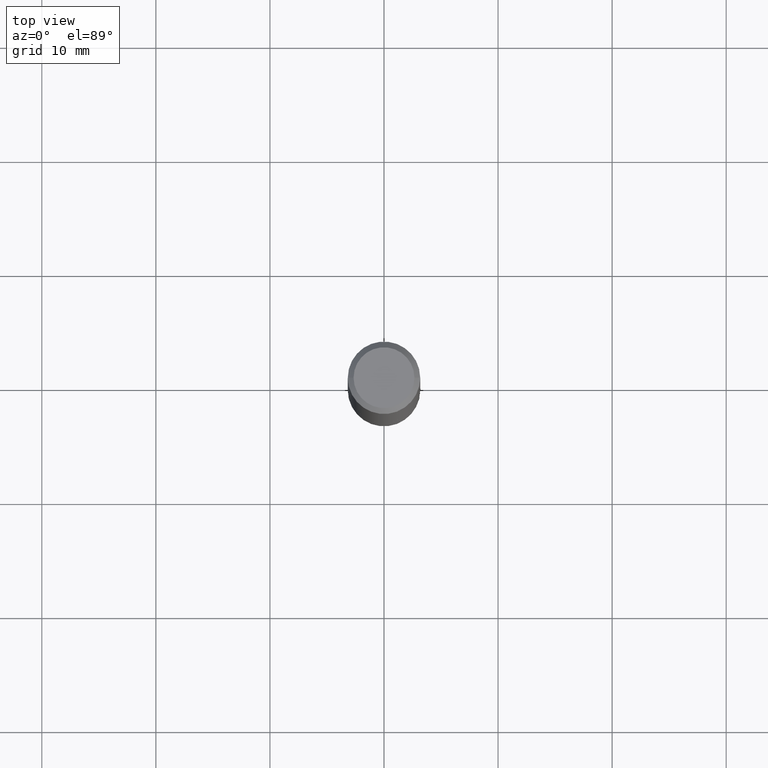
[diagram: clean part render]
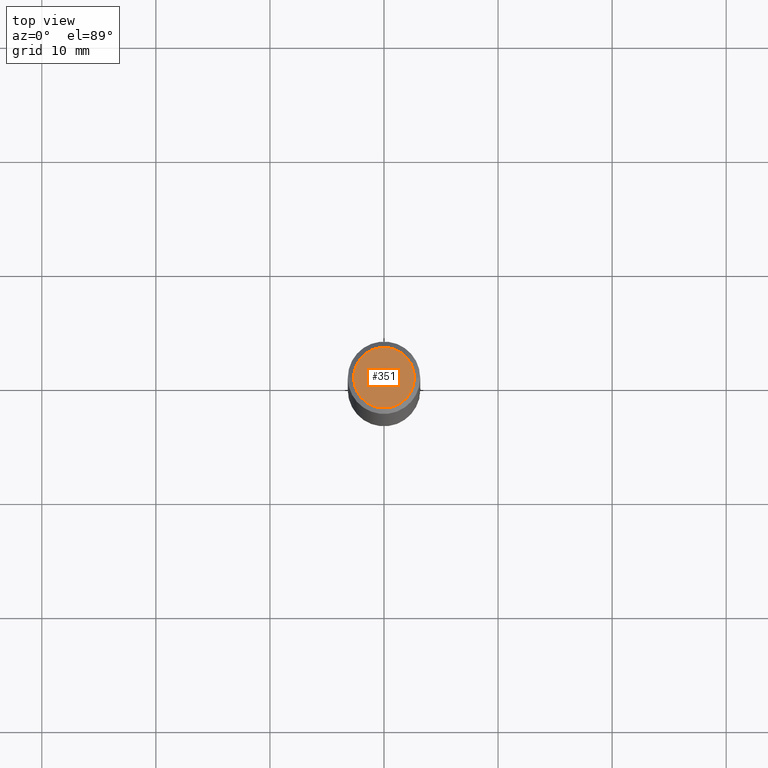
[diagram: same view with one face highlighted and labeled with its STEP entity id]
A machine part, top view. The second image highlights one B-rep face of the part: STEP entity #351.
In plain terms, the highlighted planar face has unit normal (0, -0, -1).
Its self-contained STEP definition (entity closure, byte-faithful):
#11 = CIRCLE ( 'NONE', #263, 0.1049999999999998157 ) ;
#12 = DIRECTION ( 'NONE',  ( 1.000000000000000000, -6.982962677686266711E-15, 4.876206205277402437E-29 ) ) ;
#16 = ORIENTED_EDGE ( 'NONE', *, *, #347, .T. ) ;
#37 = AXIS2_PLACEMENT_3D ( 'NONE', #90, #287, #385 ) ;
#38 = CIRCLE ( 'NONE', #37, 0.1049999999999998157 ) ;
#49 = FACE_OUTER_BOUND ( 'NONE', #295, .T. ) ;
#90 = CARTESIAN_POINT ( 'NONE',  ( -1.043851414335219820E-46, 1.490343170380447200E-32, 4.268512490100411279E-18 ) ) ;
#146 = DIRECTION ( 'NONE',  ( 2.438088387897960049E-29, -3.491481338843145188E-15, -1.000000000000000000 ) ) ;
#149 = CARTESIAN_POINT ( 'NONE',  ( -0.1049999999999998157, 7.681258945454877999E-16, 4.268512490095161194E-18 ) ) ;
#158 = CARTESIAN_POINT ( 'NONE',  ( -1.043851414335219820E-46, 1.490343170380447200E-32, 4.268512490100411279E-18 ) ) ;
#174 = PLANE ( 'NONE',  #234 ) ;
#215 = CARTESIAN_POINT ( 'NONE',  ( 7.332110811570567424E-16, 0.1049999999999998157, -3.644712843334794891E-16 ) ) ;
#234 = AXIS2_PLACEMENT_3D ( 'NONE', #215, #146, #354 ) ;
#249 = ORIENTED_EDGE ( 'NONE', *, *, #389, .T. ) ;
#263 = AXIS2_PLACEMENT_3D ( 'NONE', #158, #319, #12 ) ;
#287 = DIRECTION ( 'NONE',  ( -2.445468806185136597E-29, 3.491481338843145583E-15, 1.000000000000000000 ) ) ;
#295 = EDGE_LOOP ( 'NONE', ( #16, #249 ) ) ;
#313 = VERTEX_POINT ( 'NONE', #149 ) ;
#319 = DIRECTION ( 'NONE',  ( -2.445468806185136597E-29, 3.491481338843145583E-15, 1.000000000000000000 ) ) ;
#347 = EDGE_CURVE ( 'NONE', #313, #396, #11, .T. ) ;
#351 = ADVANCED_FACE ( 'NONE', ( #49 ), #174, .F. ) ;
#354 = DIRECTION ( 'NONE',  ( -1.000000000000000000, 6.982962677686265922E-15, -4.876176775795935793E-29 ) ) ;
#360 = CARTESIAN_POINT ( 'NONE',  ( 0.1049999999999998157, -8.238720831321562839E-16, 4.268512490105855498E-18 ) ) ;
#385 = DIRECTION ( 'NONE',  ( 1.000000000000000000, -6.982962677686266711E-15, 4.876206205277402437E-29 ) ) ;
#389 = EDGE_CURVE ( 'NONE', #396, #313, #38, .T. ) ;
#396 = VERTEX_POINT ( 'NONE', #360 ) ;